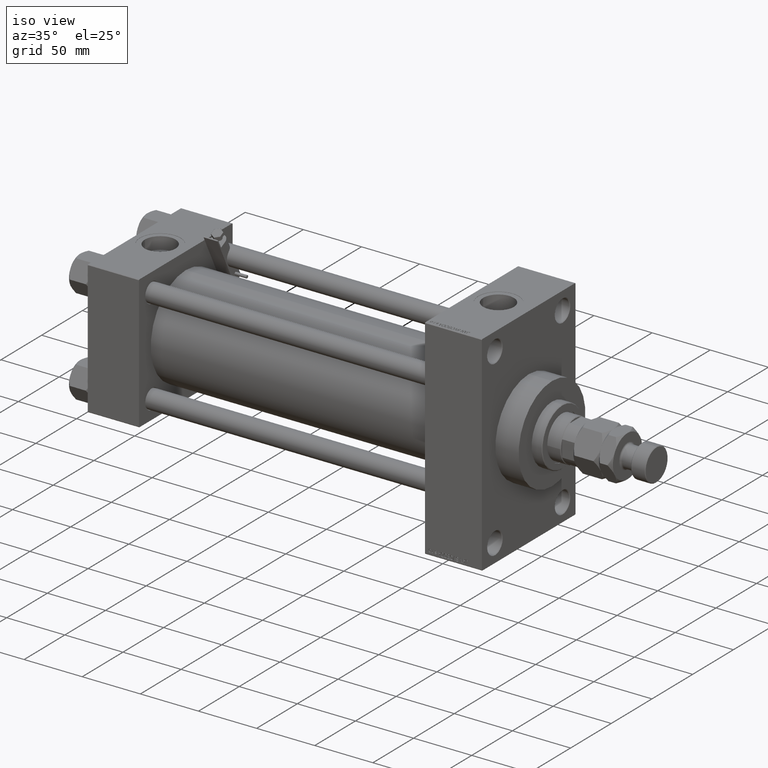
[diagram: clean part render]
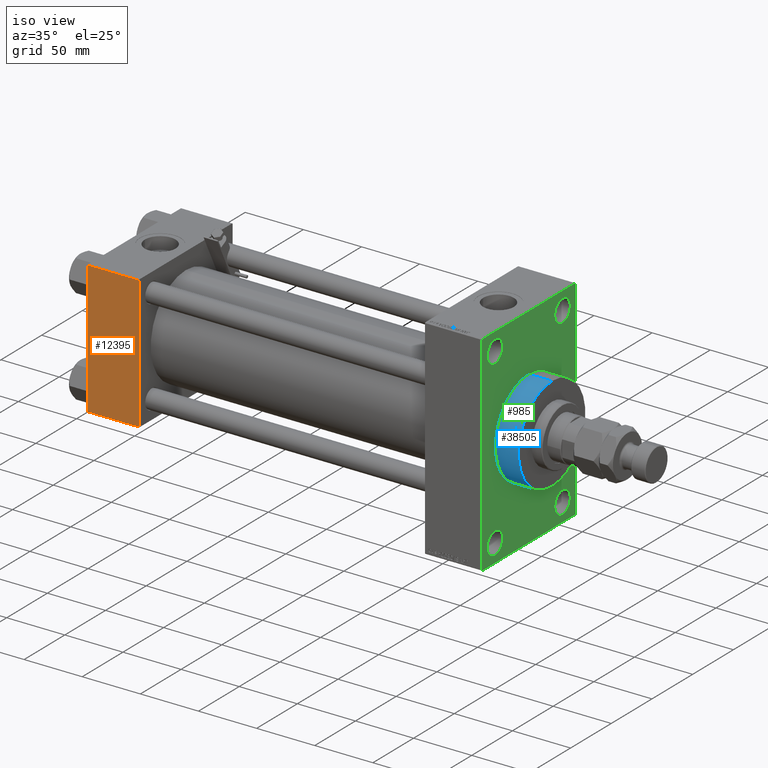
[diagram: same view with three faces highlighted in distinct colors, each labeled with its STEP entity id]
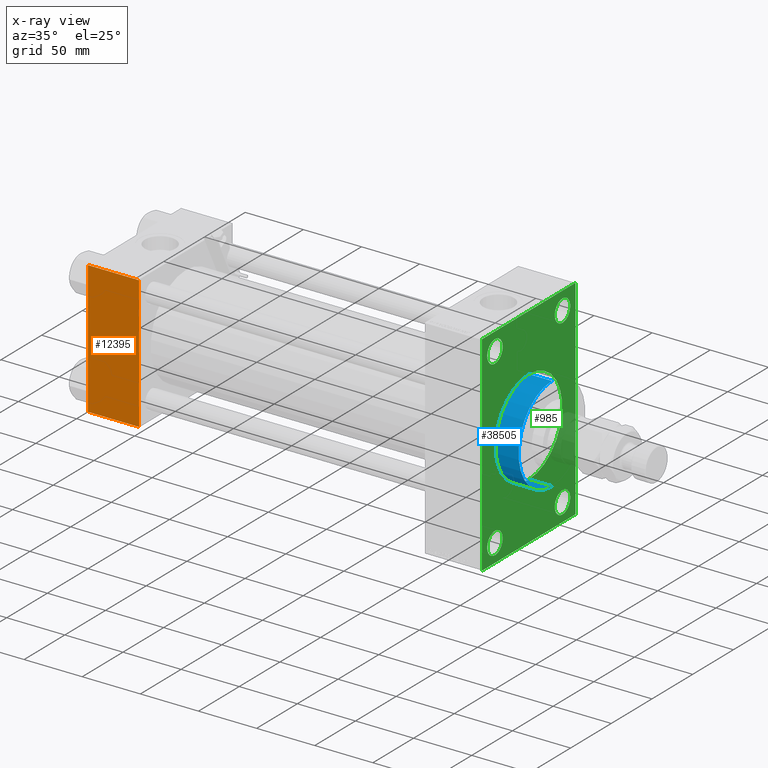
[diagram: x-ray of the same camera — body ghosted, the three highlighted faces saturated]
A machine part, iso view with three faces highlighted in distinct colors.
The next image is the same camera in x-ray (body ghosted, the three faces saturated) — at least one of them is partly hidden behind the body in this view.
Their STEP definitions:

[orange] entity #12395 — the highlighted planar face has unit normal (0, 1, 0).
#1828 = LINE ( 'NONE', #40616, #43743 ) ;
#3142 = VERTEX_POINT ( 'NONE', #39955 ) ;
#6037 = ORIENTED_EDGE ( 'NONE', *, *, #9291, .F. ) ;
#6215 = LINE ( 'NONE', #21538, #33811 ) ;
#7323 = LINE ( 'NONE', #27457, #33060 ) ;
#9291 = EDGE_CURVE ( 'NONE', #12941, #20116, #7323, .T. ) ;
#11362 = VERTEX_POINT ( 'NONE', #11431 ) ;
#11421 = LINE ( 'NONE', #46888, #39644 ) ;
#11431 = CARTESIAN_POINT ( 'NONE',  ( 0.000000000000000000, -57.50000000000000711, -57.00000000000000711 ) ) ;
#11497 = FACE_OUTER_BOUND ( 'NONE', #40916, .T. ) ;
#12395 = ADVANCED_FACE ( 'NONE', ( #11497 ), #27043, .F. ) ;
#12941 = VERTEX_POINT ( 'NONE', #13579 ) ;
#13579 = CARTESIAN_POINT ( 'NONE',  ( 44.00000000000000000, -57.50000000000000711, 57.00000000000000711 ) ) ;
#16881 = DIRECTION ( 'NONE',  ( 0.000000000000000000, 0.000000000000000000, -1.000000000000000000 ) ) ;
#18041 = CARTESIAN_POINT ( 'NONE',  ( 44.00000000000000000, -57.50000000000000711, 57.49999999999999289 ) ) ;
#18161 = ORIENTED_EDGE ( 'NONE', *, *, #43815, .T. ) ;
#20116 = VERTEX_POINT ( 'NONE', #25085 ) ;
#20415 = ORIENTED_EDGE ( 'NONE', *, *, #44310, .T. ) ;
#21538 = CARTESIAN_POINT ( 'NONE',  ( 44.00000000000000000, -57.50000000000000711, -57.00000000000000711 ) ) ;
#25085 = CARTESIAN_POINT ( 'NONE',  ( 44.00000000000000000, -57.50000000000000711, -57.00000000000000711 ) ) ;
#25318 = EDGE_CURVE ( 'NONE', #11362, #20116, #6215, .T. ) ;
#26467 = DIRECTION ( 'NONE',  ( -1.000000000000000000, 0.000000000000000000, 0.000000000000000000 ) ) ;
#27043 = PLANE ( 'NONE',  #46202 ) ;
#27457 = CARTESIAN_POINT ( 'NONE',  ( 44.00000000000000000, -57.50000000000000711, 57.49999999999999289 ) ) ;
#31693 = ORIENTED_EDGE ( 'NONE', *, *, #25318, .T. ) ;
#33060 = VECTOR ( 'NONE', #46119, 1000.000000000000000 ) ;
#33283 = DIRECTION ( 'NONE',  ( 1.000000000000000000, 0.000000000000000000, 0.000000000000000000 ) ) ;
#33811 = VECTOR ( 'NONE', #33283, 1000.000000000000000 ) ;
#37676 = DIRECTION ( 'NONE',  ( 0.000000000000000000, -0.000000000000000000, 1.000000000000000000 ) ) ;
#39644 = VECTOR ( 'NONE', #26467, 1000.000000000000000 ) ;
#39955 = CARTESIAN_POINT ( 'NONE',  ( 0.000000000000000000, -57.50000000000000711, 57.00000000000000711 ) ) ;
#40616 = CARTESIAN_POINT ( 'NONE',  ( 0.000000000000000000, -57.50000000000000711, 57.49999999999999289 ) ) ;
#40916 = EDGE_LOOP ( 'NONE', ( #18161, #31693, #6037, #20415 ) ) ;
#43743 = VECTOR ( 'NONE', #16881, 1000.000000000000000 ) ;
#43815 = EDGE_CURVE ( 'NONE', #3142, #11362, #1828, .T. ) ;
#44310 = EDGE_CURVE ( 'NONE', #12941, #3142, #11421, .T. ) ;
#45353 = DIRECTION ( 'NONE',  ( -0.000000000000000000, 1.000000000000000000, 0.000000000000000000 ) ) ;
#46119 = DIRECTION ( 'NONE',  ( 0.000000000000000000, 0.000000000000000000, -1.000000000000000000 ) ) ;
#46202 = AXIS2_PLACEMENT_3D ( 'NONE', #18041, #45353, #37676 ) ;
#46888 = CARTESIAN_POINT ( 'NONE',  ( 44.00000000000000000, -57.50000000000000711, 57.00000000000000711 ) ) ;

[blue] entity #38505 — the highlighted cylindrical surface (partial cylindrical patch) has radius 41 mm, axis along (-1, -0, -0).
#52 = CARTESIAN_POINT ( 'NONE',  ( 338.9999999999999432, 5.021051876504148963E-15, -41.00000000000000000 ) ) ;
#1319 = LINE ( 'NONE', #28098, #29585 ) ;
#1466 = DIRECTION ( 'NONE',  ( 1.000000000000000000, 0.000000000000000000, 0.000000000000000000 ) ) ;
#1547 = FACE_OUTER_BOUND ( 'NONE', #40492, .T. ) ;
#1959 = VECTOR ( 'NONE', #49933, 1000.000000000000000 ) ;
#2163 = EDGE_CURVE ( 'NONE', #17819, #36257, #42270, .T. ) ;
#2507 = VERTEX_POINT ( 'NONE', #40388 ) ;
#2689 = CARTESIAN_POINT ( 'NONE',  ( 359.0000000000000000, 5.021051876504148963E-15, -41.00000000000000000 ) ) ;
#4844 = AXIS2_PLACEMENT_3D ( 'NONE', #48238, #13260, #19911 ) ;
#4883 = DIRECTION ( 'NONE',  ( -1.000000000000000000, -0.000000000000000000, -0.000000000000000000 ) ) ;
#7712 = CIRCLE ( 'NONE', #45226, 41.00000000000000000 ) ;
#12676 = ORIENTED_EDGE ( 'NONE', *, *, #21077, .T. ) ;
#13260 = DIRECTION ( 'NONE',  ( -1.000000000000000000, -0.000000000000000000, -0.000000000000000000 ) ) ;
#17819 = VERTEX_POINT ( 'NONE', #2689 ) ;
#19911 = DIRECTION ( 'NONE',  ( 0.000000000000000000, 0.000000000000000000, 1.000000000000000000 ) ) ;
#20210 = CARTESIAN_POINT ( 'NONE',  ( 338.9999999999999432, 0.000000000000000000, 0.000000000000000000 ) ) ;
#21077 = EDGE_CURVE ( 'NONE', #2507, #29139, #1319, .T. ) ;
#22439 = CIRCLE ( 'NONE', #28119, 41.00000000000000000 ) ;
#24541 = DIRECTION ( 'NONE',  ( 0.000000000000000000, 0.000000000000000000, -1.000000000000000000 ) ) ;
#25510 = EDGE_CURVE ( 'NONE', #29139, #36257, #7712, .T. ) ;
#25951 = CARTESIAN_POINT ( 'NONE',  ( 359.0000000000000000, 5.021051876504148963E-15, -41.00000000000000000 ) ) ;
#26272 = EDGE_CURVE ( 'NONE', #2507, #17819, #22439, .T. ) ;
#28098 = CARTESIAN_POINT ( 'NONE',  ( 359.0000000000000000, 0.000000000000000000, 41.00000000000000000 ) ) ;
#28119 = AXIS2_PLACEMENT_3D ( 'NONE', #40998, #1466, #29261 ) ;
#29139 = VERTEX_POINT ( 'NONE', #40631 ) ;
#29261 = DIRECTION ( 'NONE',  ( 0.000000000000000000, 0.000000000000000000, -1.000000000000000000 ) ) ;
#29585 = VECTOR ( 'NONE', #4883, 1000.000000000000000 ) ;
#32676 = CYLINDRICAL_SURFACE ( 'NONE', #4844, 41.00000000000000000 ) ;
#33221 = ORIENTED_EDGE ( 'NONE', *, *, #26272, .F. ) ;
#36257 = VERTEX_POINT ( 'NONE', #52 ) ;
#36986 = ORIENTED_EDGE ( 'NONE', *, *, #25510, .T. ) ;
#38505 = ADVANCED_FACE ( 'NONE', ( #1547 ), #32676, .T. ) ;
#40388 = CARTESIAN_POINT ( 'NONE',  ( 359.0000000000000000, 0.000000000000000000, 41.00000000000000000 ) ) ;
#40492 = EDGE_LOOP ( 'NONE', ( #41528, #33221, #12676, #36986 ) ) ;
#40631 = CARTESIAN_POINT ( 'NONE',  ( 338.9999999999999432, 0.000000000000000000, 41.00000000000000000 ) ) ;
#40998 = CARTESIAN_POINT ( 'NONE',  ( 359.0000000000000000, 0.000000000000000000, 0.000000000000000000 ) ) ;
#41528 = ORIENTED_EDGE ( 'NONE', *, *, #2163, .F. ) ;
#42270 = LINE ( 'NONE', #25951, #1959 ) ;
#42916 = DIRECTION ( 'NONE',  ( 1.000000000000000000, 0.000000000000000000, 0.000000000000000000 ) ) ;
#45226 = AXIS2_PLACEMENT_3D ( 'NONE', #20210, #42916, #24541 ) ;
#48238 = CARTESIAN_POINT ( 'NONE',  ( 359.0000000000000000, 0.000000000000000000, 0.000000000000000000 ) ) ;
#49933 = DIRECTION ( 'NONE',  ( -1.000000000000000000, -0.000000000000000000, -0.000000000000000000 ) ) ;

[green] entity #985 — the highlighted planar face has unit normal (-1, 0, 0).
#52 = CARTESIAN_POINT ( 'NONE',  ( 338.9999999999999432, 5.021051876504148963E-15, -41.00000000000000000 ) ) ;
#119 = VERTEX_POINT ( 'NONE', #32059 ) ;
#297 = CARTESIAN_POINT ( 'NONE',  ( 338.9999999999999432, -41.49999999999999289, -74.49999999999998579 ) ) ;
#503 = CARTESIAN_POINT ( 'NONE',  ( 338.9999999999999432, 41.50000000000000711, 64.99999999999994316 ) ) ;
#764 = CARTESIAN_POINT ( 'NONE',  ( 338.9999999999999432, 41.50000000000000711, -74.50000000000000000 ) ) ;
#985 = ADVANCED_FACE ( 'NONE', ( #40794, #48711, #17311, #37217, #49210, #36962 ), #2013, .F. ) ;
#1297 = DIRECTION ( 'NONE',  ( 0.000000000000000000, 0.000000000000000000, -1.000000000000000000 ) ) ;
#1367 = CIRCLE ( 'NONE', #18469, 9.500000000000063949 ) ;
#1722 = EDGE_CURVE ( 'NONE', #30406, #16083, #27362, .T. ) ;
#2013 = PLANE ( 'NONE',  #5110 ) ;
#2139 = EDGE_LOOP ( 'NONE', ( #30779, #11870 ) ) ;
#2237 = VECTOR ( 'NONE', #5469, 1000.000000000000000 ) ;
#2373 = ORIENTED_EDGE ( 'NONE', *, *, #1722, .T. ) ;
#2491 = ORIENTED_EDGE ( 'NONE', *, *, #44857, .T. ) ;
#3283 = CARTESIAN_POINT ( 'NONE',  ( 338.9999999999999432, 41.50000000000000711, 84.00000000000007105 ) ) ;
#3585 = VECTOR ( 'NONE', #47871, 1000.000000000000000 ) ;
#4608 = CARTESIAN_POINT ( 'NONE',  ( 338.9999999999999432, -57.50000000000002132, 89.99999999999997158 ) ) ;
#4793 = VERTEX_POINT ( 'NONE', #5728 ) ;
#5110 = AXIS2_PLACEMENT_3D ( 'NONE', #25973, #28801, #44376 ) ;
#5115 = CARTESIAN_POINT ( 'NONE',  ( 338.9999999999999432, 56.99999999999992184, 89.99999999999998579 ) ) ;
#5296 = CIRCLE ( 'NONE', #45228, 9.499999999999896971 ) ;
#5368 = DIRECTION ( 'NONE',  ( 1.000000000000000000, 0.000000000000000000, 0.000000000000000000 ) ) ;
#5469 = DIRECTION ( 'NONE',  ( 0.000000000000000000, -1.000000000000000000, -1.206764157201257291E-16 ) ) ;
#5522 = VERTEX_POINT ( 'NONE', #35867 ) ;
#5728 = CARTESIAN_POINT ( 'NONE',  ( 338.9999999999999432, 41.50000000000000711, -64.99999999999992895 ) ) ;
#6024 = VECTOR ( 'NONE', #1297, 1000.000000000000000 ) ;
#6089 = EDGE_CURVE ( 'NONE', #5522, #30406, #24257, .T. ) ;
#6462 = EDGE_CURVE ( 'NONE', #49561, #5522, #9325, .T. ) ;
#7293 = DIRECTION ( 'NONE',  ( -1.000000000000000000, 0.000000000000000000, -0.000000000000000000 ) ) ;
#7541 = DIRECTION ( 'NONE',  ( 0.000000000000000000, 0.000000000000000000, 1.000000000000000000 ) ) ;
#7664 = EDGE_CURVE ( 'NONE', #9806, #15773, #20692, .T. ) ;
#7712 = CIRCLE ( 'NONE', #45226, 41.00000000000000000 ) ;
#7899 = CIRCLE ( 'NONE', #14309, 9.499999999999896971 ) ;
#7945 = DIRECTION ( 'NONE',  ( -1.000000000000000000, 0.000000000000000000, -0.000000000000000000 ) ) ;
#8288 = EDGE_CURVE ( 'NONE', #48709, #13725, #47307, .T. ) ;
#8658 = EDGE_CURVE ( 'NONE', #119, #45464, #5296, .T. ) ;
#8766 = DIRECTION ( 'NONE',  ( -0.000000000000000000, 0.7071067811865181518, 0.7071067811865769936 ) ) ;
#9325 = LINE ( 'NONE', #44540, #3585 ) ;
#9445 = AXIS2_PLACEMENT_3D ( 'NONE', #13235, #28806, #25237 ) ;
#9806 = VERTEX_POINT ( 'NONE', #18133 ) ;
#10870 = VECTOR ( 'NONE', #46283, 1000.000000000000114 ) ;
#11048 = ORIENTED_EDGE ( 'NONE', *, *, #37970, .F. ) ;
#11122 = CARTESIAN_POINT ( 'NONE',  ( 338.9999999999999432, 57.49999999999997868, -90.00000000000000000 ) ) ;
#11870 = ORIENTED_EDGE ( 'NONE', *, *, #38879, .T. ) ;
#11953 = AXIS2_PLACEMENT_3D ( 'NONE', #764, #32396, #24230 ) ;
#12231 = EDGE_CURVE ( 'NONE', #4793, #18058, #1367, .T. ) ;
#12501 = DIRECTION ( 'NONE',  ( 0.000000000000000000, 0.000000000000000000, 1.000000000000000000 ) ) ;
#12767 = VERTEX_POINT ( 'NONE', #41938 ) ;
#13235 = CARTESIAN_POINT ( 'NONE',  ( 338.9999999999999432, 41.50000000000000711, 74.50000000000001421 ) ) ;
#13248 = VERTEX_POINT ( 'NONE', #503 ) ;
#13594 = ORIENTED_EDGE ( 'NONE', *, *, #43310, .F. ) ;
#13725 = VERTEX_POINT ( 'NONE', #45330 ) ;
#14198 = LINE ( 'NONE', #11122, #34936 ) ;
#14309 = AXIS2_PLACEMENT_3D ( 'NONE', #31649, #44143, #12501 ) ;
#14659 = EDGE_LOOP ( 'NONE', ( #18009, #15423 ) ) ;
#15423 = ORIENTED_EDGE ( 'NONE', *, *, #8658, .T. ) ;
#15773 = VERTEX_POINT ( 'NONE', #34361 ) ;
#16083 = VERTEX_POINT ( 'NONE', #18726 ) ;
#16142 = ORIENTED_EDGE ( 'NONE', *, *, #6089, .T. ) ;
#17266 = CARTESIAN_POINT ( 'NONE',  ( 338.9999999999999432, -57.50000000000002132, -89.50000000000002842 ) ) ;
#17275 = CIRCLE ( 'NONE', #19734, 41.00000000000000000 ) ;
#17311 = FACE_BOUND ( 'NONE', #39075, .T. ) ;
#17797 = DIRECTION ( 'NONE',  ( -1.000000000000000000, 0.000000000000000000, -0.000000000000000000 ) ) ;
#18009 = ORIENTED_EDGE ( 'NONE', *, *, #30778, .T. ) ;
#18045 = DIRECTION ( 'NONE',  ( 0.000000000000000000, 0.000000000000000000, 1.000000000000000000 ) ) ;
#18058 = VERTEX_POINT ( 'NONE', #44995 ) ;
#18133 = CARTESIAN_POINT ( 'NONE',  ( 338.9999999999999432, 57.49999999999997158, 89.49999999999998579 ) ) ;
#18160 = CARTESIAN_POINT ( 'NONE',  ( 338.9999999999999432, 41.50000000000000711, -74.50000000000000000 ) ) ;
#18249 = ORIENTED_EDGE ( 'NONE', *, *, #25510, .F. ) ;
#18469 = AXIS2_PLACEMENT_3D ( 'NONE', #18160, #45958, #22739 ) ;
#18726 = CARTESIAN_POINT ( 'NONE',  ( 338.9999999999999432, -57.00000000000002132, -90.00000000000001421 ) ) ;
#19070 = CARTESIAN_POINT ( 'NONE',  ( 338.9999999999999432, -41.49999999999999289, 74.50000000000001421 ) ) ;
#19142 = EDGE_CURVE ( 'NONE', #36257, #29139, #17275, .T. ) ;
#19734 = AXIS2_PLACEMENT_3D ( 'NONE', #40323, #5368, #25012 ) ;
#19962 = ORIENTED_EDGE ( 'NONE', *, *, #19142, .F. ) ;
#20210 = CARTESIAN_POINT ( 'NONE',  ( 338.9999999999999432, 0.000000000000000000, 0.000000000000000000 ) ) ;
#20692 = LINE ( 'NONE', #5115, #28903 ) ;
#20923 = AXIS2_PLACEMENT_3D ( 'NONE', #26675, #7293, #7541 ) ;
#21448 = DIRECTION ( 'NONE',  ( 0.000000000000000000, -0.7071067811865867636, 0.7071067811865081598 ) ) ;
#21512 = ORIENTED_EDGE ( 'NONE', *, *, #44346, .T. ) ;
#22739 = DIRECTION ( 'NONE',  ( 0.000000000000000000, 0.000000000000000000, 1.000000000000000000 ) ) ;
#23529 = EDGE_LOOP ( 'NONE', ( #16142, #2373, #11048, #48655, #13594, #28789, #2491, #45482 ) ) ;
#24230 = DIRECTION ( 'NONE',  ( 0.000000000000000000, 0.000000000000000000, 1.000000000000000000 ) ) ;
#24257 = LINE ( 'NONE', #4608, #6024 ) ;
#24541 = DIRECTION ( 'NONE',  ( 0.000000000000000000, 0.000000000000000000, -1.000000000000000000 ) ) ;
#25012 = DIRECTION ( 'NONE',  ( 0.000000000000000000, 0.000000000000000000, -1.000000000000000000 ) ) ;
#25013 = CIRCLE ( 'NONE', #11953, 9.500000000000063949 ) ;
#25237 = DIRECTION ( 'NONE',  ( 0.000000000000000000, 0.000000000000000000, 1.000000000000000000 ) ) ;
#25510 = EDGE_CURVE ( 'NONE', #29139, #36257, #7712, .T. ) ;
#25973 = CARTESIAN_POINT ( 'NONE',  ( 338.9999999999999432, 0.000000000000000000, 0.000000000000000000 ) ) ;
#26006 = CARTESIAN_POINT ( 'NONE',  ( 338.9999999999999432, -57.00000000000007105, 89.99999999999997158 ) ) ;
#26675 = CARTESIAN_POINT ( 'NONE',  ( 338.9999999999999432, -41.49999999999999289, 74.50000000000001421 ) ) ;
#27231 = EDGE_CURVE ( 'NONE', #13248, #47523, #41202, .T. ) ;
#27362 = LINE ( 'NONE', #46025, #10870 ) ;
#28121 = CARTESIAN_POINT ( 'NONE',  ( 338.9999999999999432, -41.49999999999999289, 84.00000000000007105 ) ) ;
#28251 = AXIS2_PLACEMENT_3D ( 'NONE', #19070, #35143, #42045 ) ;
#28454 = CARTESIAN_POINT ( 'NONE',  ( 338.9999999999999432, 57.00000000000003553, -90.00000000000000000 ) ) ;
#28789 = ORIENTED_EDGE ( 'NONE', *, *, #7664, .T. ) ;
#28801 = DIRECTION ( 'NONE',  ( -1.000000000000000000, 0.000000000000000000, -0.000000000000000000 ) ) ;
#28806 = DIRECTION ( 'NONE',  ( -1.000000000000000000, 0.000000000000000000, -0.000000000000000000 ) ) ;
#28903 = VECTOR ( 'NONE', #21448, 1000.000000000000000 ) ;
#28944 = ORIENTED_EDGE ( 'NONE', *, *, #12231, .T. ) ;
#29027 = VECTOR ( 'NONE', #42479, 1000.000000000000000 ) ;
#29139 = VERTEX_POINT ( 'NONE', #40631 ) ;
#29393 = EDGE_CURVE ( 'NONE', #12767, #47890, #34794, .T. ) ;
#29764 = CARTESIAN_POINT ( 'NONE',  ( 338.9999999999999432, -41.49999999999999289, -83.99999999999988631 ) ) ;
#29822 = EDGE_LOOP ( 'NONE', ( #18249, #19962 ) ) ;
#30406 = VERTEX_POINT ( 'NONE', #17266 ) ;
#30778 = EDGE_CURVE ( 'NONE', #45464, #119, #7899, .T. ) ;
#30779 = ORIENTED_EDGE ( 'NONE', *, *, #27231, .T. ) ;
#30921 = AXIS2_PLACEMENT_3D ( 'NONE', #37191, #17797, #18045 ) ;
#31649 = CARTESIAN_POINT ( 'NONE',  ( 338.9999999999999432, -41.49999999999999289, -74.49999999999998579 ) ) ;
#32059 = CARTESIAN_POINT ( 'NONE',  ( 338.9999999999999432, -41.49999999999999289, -65.00000000000008527 ) ) ;
#32396 = DIRECTION ( 'NONE',  ( -1.000000000000000000, 0.000000000000000000, -0.000000000000000000 ) ) ;
#34361 = CARTESIAN_POINT ( 'NONE',  ( 338.9999999999999432, 56.99999999999992184, 89.99999999999998579 ) ) ;
#34640 = ORIENTED_EDGE ( 'NONE', *, *, #29393, .T. ) ;
#34794 = CIRCLE ( 'NONE', #20923, 9.500000000000063949 ) ;
#34936 = VECTOR ( 'NONE', #49673, 1000.000000000000000 ) ;
#35064 = CARTESIAN_POINT ( 'NONE',  ( 338.9999999999999432, 57.49999999999997868, -89.50000000000001421 ) ) ;
#35143 = DIRECTION ( 'NONE',  ( -1.000000000000000000, 0.000000000000000000, -0.000000000000000000 ) ) ;
#35323 = ORIENTED_EDGE ( 'NONE', *, *, #44042, .T. ) ;
#35768 = DIRECTION ( 'NONE',  ( 0.000000000000000000, 0.000000000000000000, 1.000000000000000000 ) ) ;
#35867 = CARTESIAN_POINT ( 'NONE',  ( 338.9999999999999432, -57.50000000000002132, 89.49999999999997158 ) ) ;
#36257 = VERTEX_POINT ( 'NONE', #52 ) ;
#36962 = FACE_OUTER_BOUND ( 'NONE', #23529, .T. ) ;
#37191 = CARTESIAN_POINT ( 'NONE',  ( 338.9999999999999432, 41.50000000000000711, 74.50000000000001421 ) ) ;
#37217 = FACE_BOUND ( 'NONE', #2139, .T. ) ;
#37970 = EDGE_CURVE ( 'NONE', #48709, #16083, #14198, .T. ) ;
#38879 = EDGE_CURVE ( 'NONE', #47523, #13248, #48031, .T. ) ;
#39075 = EDGE_LOOP ( 'NONE', ( #35323, #28944 ) ) ;
#39143 = CARTESIAN_POINT ( 'NONE',  ( 338.9999999999999432, 57.49999999999997158, 89.99999999999998579 ) ) ;
#40323 = CARTESIAN_POINT ( 'NONE',  ( 338.9999999999999432, 0.000000000000000000, 0.000000000000000000 ) ) ;
#40631 = CARTESIAN_POINT ( 'NONE',  ( 338.9999999999999432, 0.000000000000000000, 41.00000000000000000 ) ) ;
#40794 = FACE_BOUND ( 'NONE', #46203, .T. ) ;
#41202 = CIRCLE ( 'NONE', #9445, 9.500000000000063949 ) ;
#41430 = CARTESIAN_POINT ( 'NONE',  ( 338.9999999999999432, 57.49999999999997158, 89.99999999999998579 ) ) ;
#41938 = CARTESIAN_POINT ( 'NONE',  ( 338.9999999999999432, -41.49999999999999289, 64.99999999999994316 ) ) ;
#42045 = DIRECTION ( 'NONE',  ( 0.000000000000000000, 0.000000000000000000, 1.000000000000000000 ) ) ;
#42479 = DIRECTION ( 'NONE',  ( 0.000000000000000000, 3.854941057726238467E-17, -1.000000000000000000 ) ) ;
#42916 = DIRECTION ( 'NONE',  ( 1.000000000000000000, 0.000000000000000000, 0.000000000000000000 ) ) ;
#43310 = EDGE_CURVE ( 'NONE', #9806, #13725, #46066, .T. ) ;
#44042 = EDGE_CURVE ( 'NONE', #18058, #4793, #25013, .T. ) ;
#44143 = DIRECTION ( 'NONE',  ( -1.000000000000000000, 0.000000000000000000, -0.000000000000000000 ) ) ;
#44346 = EDGE_CURVE ( 'NONE', #47890, #12767, #46178, .T. ) ;
#44376 = DIRECTION ( 'NONE',  ( -0.000000000000000000, 0.000000000000000000, 1.000000000000000000 ) ) ;
#44540 = CARTESIAN_POINT ( 'NONE',  ( 338.9999999999999432, -57.50000000000002132, 89.49999999999997158 ) ) ;
#44857 = EDGE_CURVE ( 'NONE', #15773, #49561, #48594, .T. ) ;
#44995 = CARTESIAN_POINT ( 'NONE',  ( 338.9999999999999432, 41.50000000000000711, -84.00000000000005684 ) ) ;
#45226 = AXIS2_PLACEMENT_3D ( 'NONE', #20210, #42916, #24541 ) ;
#45228 = AXIS2_PLACEMENT_3D ( 'NONE', #297, #7945, #35768 ) ;
#45330 = CARTESIAN_POINT ( 'NONE',  ( 338.9999999999999432, 57.49999999999997868, -89.49999999999995737 ) ) ;
#45464 = VERTEX_POINT ( 'NONE', #29764 ) ;
#45482 = ORIENTED_EDGE ( 'NONE', *, *, #6462, .T. ) ;
#45958 = DIRECTION ( 'NONE',  ( -1.000000000000000000, 0.000000000000000000, -0.000000000000000000 ) ) ;
#46025 = CARTESIAN_POINT ( 'NONE',  ( 338.9999999999999432, -57.00000000000002132, -90.00000000000001421 ) ) ;
#46051 = VECTOR ( 'NONE', #8766, 1000.000000000000000 ) ;
#46066 = LINE ( 'NONE', #39143, #29027 ) ;
#46178 = CIRCLE ( 'NONE', #28251, 9.500000000000063949 ) ;
#46203 = EDGE_LOOP ( 'NONE', ( #34640, #21512 ) ) ;
#46283 = DIRECTION ( 'NONE',  ( 0.000000000000000000, 0.7071067811865965336, -0.7071067811864985009 ) ) ;
#47307 = LINE ( 'NONE', #35064, #46051 ) ;
#47523 = VERTEX_POINT ( 'NONE', #3283 ) ;
#47871 = DIRECTION ( 'NONE',  ( -0.000000000000000000, -0.7071067811865131558, -0.7071067811865818786 ) ) ;
#47890 = VERTEX_POINT ( 'NONE', #28121 ) ;
#48031 = CIRCLE ( 'NONE', #30921, 9.500000000000063949 ) ;
#48594 = LINE ( 'NONE', #41430, #2237 ) ;
#48655 = ORIENTED_EDGE ( 'NONE', *, *, #8288, .T. ) ;
#48709 = VERTEX_POINT ( 'NONE', #28454 ) ;
#48711 = FACE_BOUND ( 'NONE', #14659, .T. ) ;
#49210 = FACE_BOUND ( 'NONE', #29822, .T. ) ;
#49561 = VERTEX_POINT ( 'NONE', #26006 ) ;
#49673 = DIRECTION ( 'NONE',  ( 0.000000000000000000, -1.000000000000000000, -1.206764157201257045E-16 ) ) ;